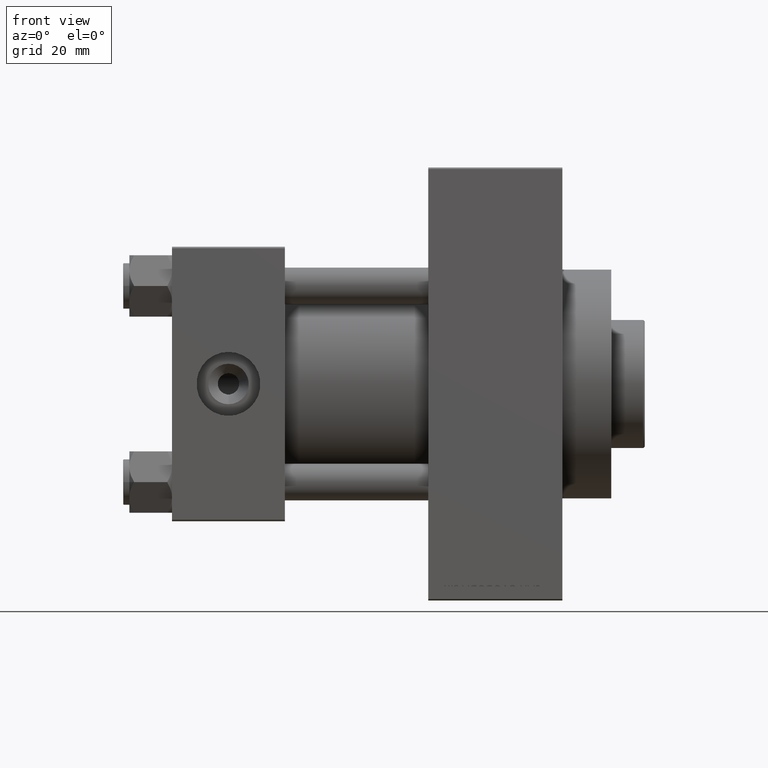
[diagram: clean part render]
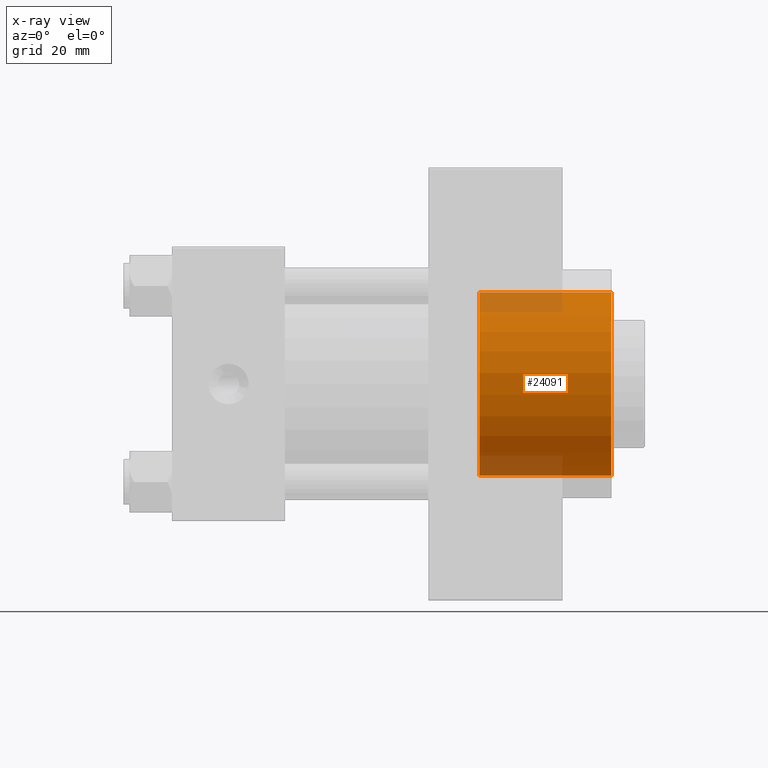
[diagram: x-ray — body ghosted, one internal face saturated and labeled with its STEP entity id]
A machine part, front view, then the same camera in x-ray: the body is ghosted and one INTERNAL B-rep face — a face not visible from any outside direction — is saturated and labeled: STEP entity #24091.
In plain terms, the highlighted cylindrical surface (partial cylindrical patch) has radius 30 mm, axis along (1, 0, 0).
Its self-contained STEP definition (entity closure, byte-faithful):
#87 = EDGE_CURVE ( 'NONE', #21677, #13730, #4309, .T. ) ;
#3508 = AXIS2_PLACEMENT_3D ( 'NONE', #9359, #46591, #27998 ) ;
#3987 = ORIENTED_EDGE ( 'NONE', *, *, #33688, .F. ) ;
#4309 = LINE ( 'NONE', #36553, #29231 ) ;
#5474 = AXIS2_PLACEMENT_3D ( 'NONE', #24955, #31431, #42410 ) ;
#5740 = EDGE_LOOP ( 'NONE', ( #3987, #39294, #20528, #15110 ) ) ;
#8117 = DIRECTION ( 'NONE',  ( 1.000000000000000000, -0.000000000000000000, -0.000000000000000000 ) ) ;
#8868 = CIRCLE ( 'NONE', #3508, 30.00000000000000000 ) ;
#9359 = CARTESIAN_POINT ( 'NONE',  ( 144.0000000000000284, 0.000000000000000000, 0.000000000000000000 ) ) ;
#13730 = VERTEX_POINT ( 'NONE', #33122 ) ;
#13908 = DIRECTION ( 'NONE',  ( 1.000000000000000000, 0.000000000000000000, 0.000000000000000000 ) ) ;
#14146 = CARTESIAN_POINT ( 'NONE',  ( 100.7400000000000233, 0.000000000000000000, 0.000000000000000000 ) ) ;
#15110 = ORIENTED_EDGE ( 'NONE', *, *, #40977, .F. ) ;
#16350 = AXIS2_PLACEMENT_3D ( 'NONE', #14146, #13908, #21784 ) ;
#17178 = VERTEX_POINT ( 'NONE', #41046 ) ;
#17854 = VECTOR ( 'NONE', #21995, 1000.000000000000000 ) ;
#20528 = ORIENTED_EDGE ( 'NONE', *, *, #45704, .T. ) ;
#20677 = CYLINDRICAL_SURFACE ( 'NONE', #5474, 30.00000000000000000 ) ;
#21677 = VERTEX_POINT ( 'NONE', #45750 ) ;
#21784 = DIRECTION ( 'NONE',  ( 0.000000000000000000, 0.000000000000000000, -1.000000000000000000 ) ) ;
#21995 = DIRECTION ( 'NONE',  ( 1.000000000000000000, -0.000000000000000000, -0.000000000000000000 ) ) ;
#24091 = ADVANCED_FACE ( 'NONE', ( #28309 ), #20677, .F. ) ;
#24955 = CARTESIAN_POINT ( 'NONE',  ( 100.7400000000000233, 0.000000000000000000, 0.000000000000000000 ) ) ;
#25402 = VERTEX_POINT ( 'NONE', #34936 ) ;
#25569 = LINE ( 'NONE', #40133, #17854 ) ;
#27998 = DIRECTION ( 'NONE',  ( 0.000000000000000000, 0.000000000000000000, -1.000000000000000000 ) ) ;
#28309 = FACE_OUTER_BOUND ( 'NONE', #5740, .T. ) ;
#29231 = VECTOR ( 'NONE', #8117, 1000.000000000000000 ) ;
#30103 = CIRCLE ( 'NONE', #16350, 30.00000000000000000 ) ;
#31431 = DIRECTION ( 'NONE',  ( 1.000000000000000000, -0.000000000000000000, -0.000000000000000000 ) ) ;
#33122 = CARTESIAN_POINT ( 'NONE',  ( 144.0000000000000284, 3.673940397442059178E-15, 30.00000000000000000 ) ) ;
#33688 = EDGE_CURVE ( 'NONE', #21677, #25402, #30103, .T. ) ;
#34936 = CARTESIAN_POINT ( 'NONE',  ( 100.7400000000000233, 0.000000000000000000, -30.00000000000000000 ) ) ;
#36553 = CARTESIAN_POINT ( 'NONE',  ( 100.7400000000000233, 3.673940397442059178E-15, 30.00000000000000000 ) ) ;
#39294 = ORIENTED_EDGE ( 'NONE', *, *, #87, .T. ) ;
#40133 = CARTESIAN_POINT ( 'NONE',  ( 100.7400000000000233, 0.000000000000000000, -30.00000000000000000 ) ) ;
#40977 = EDGE_CURVE ( 'NONE', #25402, #17178, #25569, .T. ) ;
#41046 = CARTESIAN_POINT ( 'NONE',  ( 144.0000000000000284, 0.000000000000000000, -30.00000000000000000 ) ) ;
#42410 = DIRECTION ( 'NONE',  ( 0.000000000000000000, 0.000000000000000000, -1.000000000000000000 ) ) ;
#45704 = EDGE_CURVE ( 'NONE', #13730, #17178, #8868, .T. ) ;
#45750 = CARTESIAN_POINT ( 'NONE',  ( 100.7400000000000233, 3.673940397442059178E-15, 30.00000000000000000 ) ) ;
#46591 = DIRECTION ( 'NONE',  ( 1.000000000000000000, 0.000000000000000000, 0.000000000000000000 ) ) ;